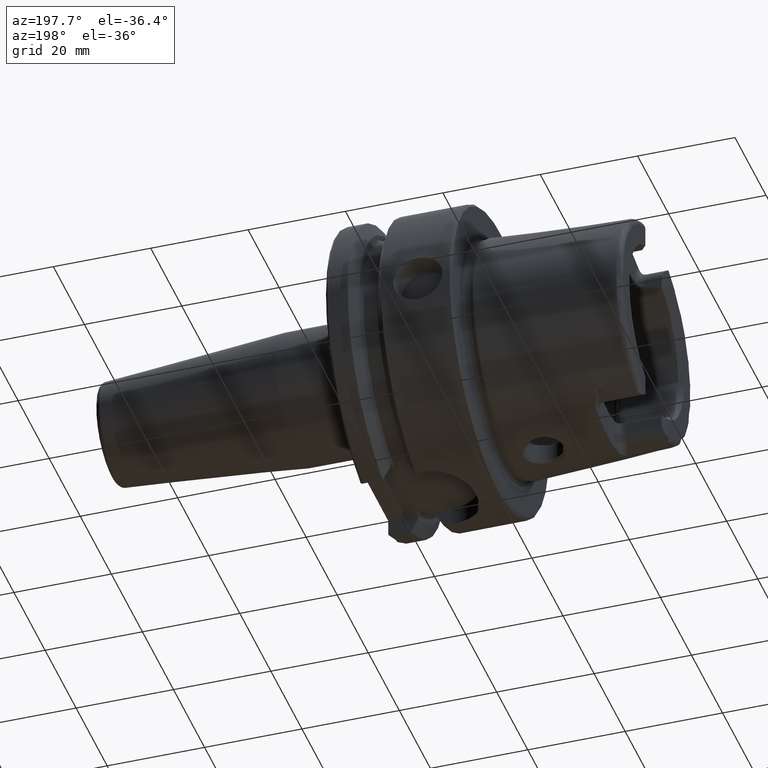
[diagram: clean part render]
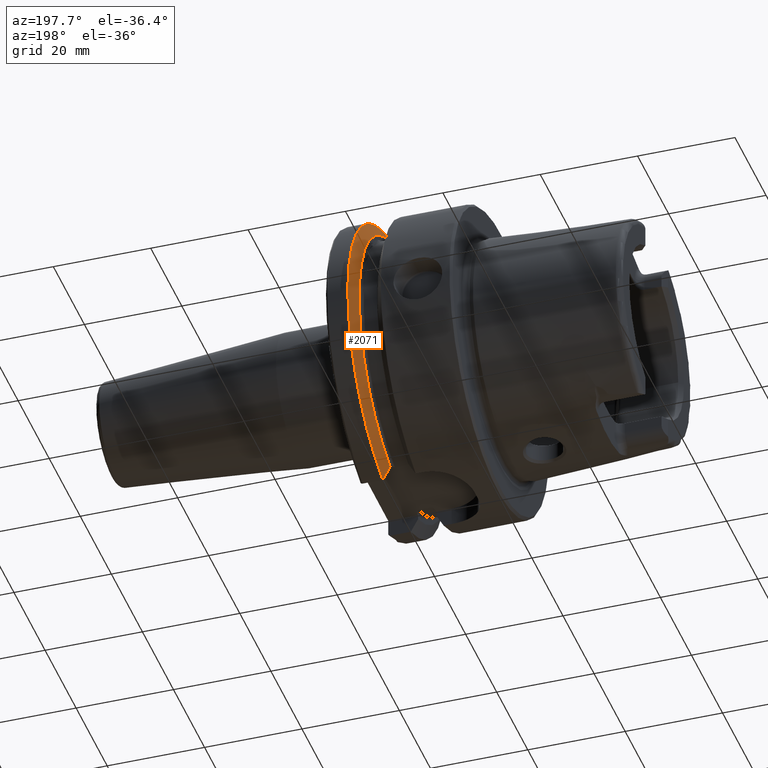
[diagram: same view with one face highlighted and labeled with its STEP entity id]
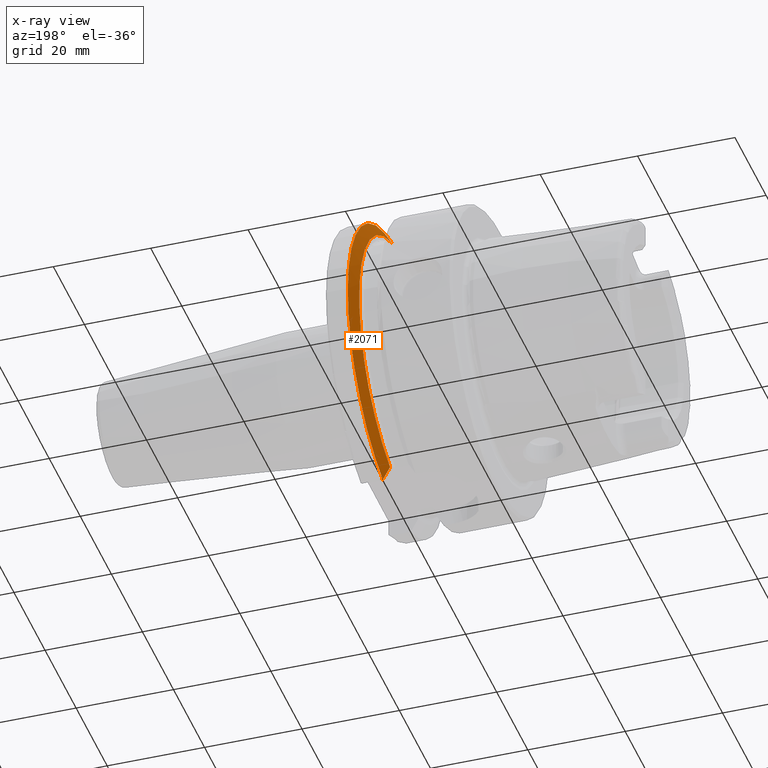
[diagram: x-ray of the same camera — body ghosted, the highlighted face saturated]
A machine part, auxiliary view. The second image highlights one B-rep face of the part: STEP entity #2071.
The next image is the same camera in x-ray: the body ghosted, the highlighted face saturated — about 0% of this face is hidden behind the body in this view.
In plain terms, the highlighted conical surface has half-angle 60 deg.
Its self-contained STEP definition (entity closure, byte-faithful):
#24=(
BOUNDED_CURVE()
B_SPLINE_CURVE(2,(#4049,#4050,#4051),.UNSPECIFIED.,.F.,.F.)
B_SPLINE_CURVE_WITH_KNOTS((3,3),(0.,0.311314369989023),.UNSPECIFIED.)
CURVE()
GEOMETRIC_REPRESENTATION_ITEM()
RATIONAL_B_SPLINE_CURVE((1.,1.00102053193238,1.))
REPRESENTATION_ITEM('')
);
#27=(
BOUNDED_CURVE()
B_SPLINE_CURVE(2,(#4246,#4247,#4248),.UNSPECIFIED.,.F.,.F.)
B_SPLINE_CURVE_WITH_KNOTS((3,3),(0.,0.308905667770379),.UNSPECIFIED.)
CURVE()
GEOMETRIC_REPRESENTATION_ITEM()
RATIONAL_B_SPLINE_CURVE((1.,1.00099999355179,1.))
REPRESENTATION_ITEM('')
);
#283=FACE_OUTER_BOUND('',#412,.T.);
#412=EDGE_LOOP('',(#1715,#1716,#1717,#1718));
#763=CIRCLE('',#2294,31.5);
#767=CIRCLE('',#2302,28.8975952641916);
#956=VERTEX_POINT('',#4046);
#957=VERTEX_POINT('',#4048);
#983=VERTEX_POINT('',#4230);
#986=VERTEX_POINT('',#4244);
#1212=EDGE_CURVE('',#957,#956,#24,.T.);
#1252=EDGE_CURVE('',#957,#983,#763,.T.);
#1259=EDGE_CURVE('',#956,#986,#767,.T.);
#1260=EDGE_CURVE('',#986,#983,#27,.T.);
#1715=ORIENTED_EDGE('',*,*,#1212,.T.);
#1716=ORIENTED_EDGE('',*,*,#1259,.T.);
#1717=ORIENTED_EDGE('',*,*,#1260,.T.);
#1718=ORIENTED_EDGE('',*,*,#1252,.F.);
#1993=CONICAL_SURFACE('',#2301,30.1987976320958,1.0471975511966);
#2071=ADVANCED_FACE('',(#283),#1993,.T.);
#2294=AXIS2_PLACEMENT_3D('',#4231,#2783,#2784);
#2301=AXIS2_PLACEMENT_3D('',#4243,#2800,#2801);
#2302=AXIS2_PLACEMENT_3D('',#4245,#2802,#2803);
#2783=DIRECTION('center_axis',(1.,0.,0.));
#2784=DIRECTION('ref_axis',(0.,0.,-1.));
#2800=DIRECTION('center_axis',(1.,0.,0.));
#2801=DIRECTION('ref_axis',(0.,1.,0.));
#2802=DIRECTION('center_axis',(1.,0.,0.));
#2803=DIRECTION('ref_axis',(0.,0.,-1.));
#4046=CARTESIAN_POINT('',(19.875,9.,-27.4603534582684));
#4048=CARTESIAN_POINT('',(21.3774990747593,9.,-30.1869176962472));
#4049=CARTESIAN_POINT('Ctrl Pts',(21.3774990747593,9.,-30.1869176962472));
#4050=CARTESIAN_POINT('Ctrl Pts',(20.5907174110267,9.,-28.7648946319029));
#4051=CARTESIAN_POINT('Ctrl Pts',(19.875,9.,-27.4603534582684));
#4230=CARTESIAN_POINT('',(21.3774990747593,8.,30.4671954731642));
#4231=CARTESIAN_POINT('Origin',(21.3774990747593,0.,0.));
#4243=CARTESIAN_POINT('Origin',(20.6262495373797,0.,0.));
#4244=CARTESIAN_POINT('',(19.875,8.,27.7681654426977));
#4245=CARTESIAN_POINT('Origin',(19.875,0.,0.));
#4246=CARTESIAN_POINT('Ctrl Pts',(19.875,8.,27.7681654426977));
#4247=CARTESIAN_POINT('Ctrl Pts',(20.5914314297926,8.,29.0595327079868));
#4248=CARTESIAN_POINT('Ctrl Pts',(21.3774990747593,8.,30.4671954731642));